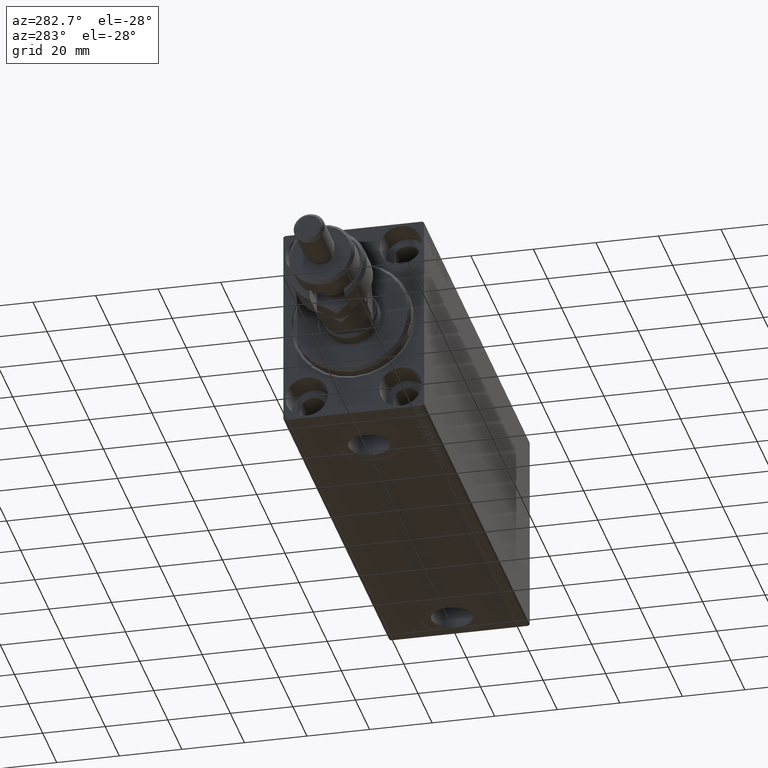
[diagram: clean part render]
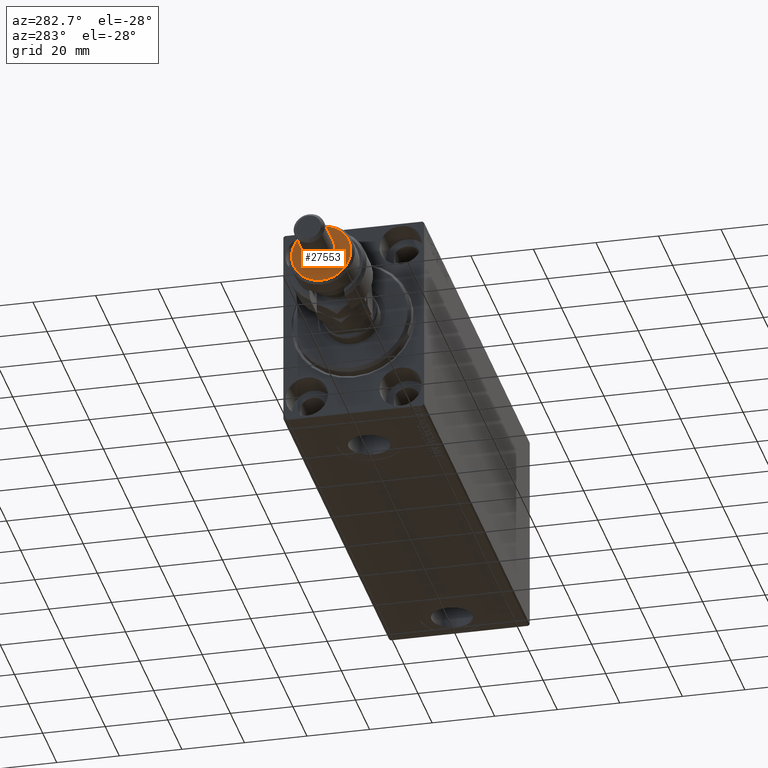
[diagram: same view with one face highlighted and labeled with its STEP entity id]
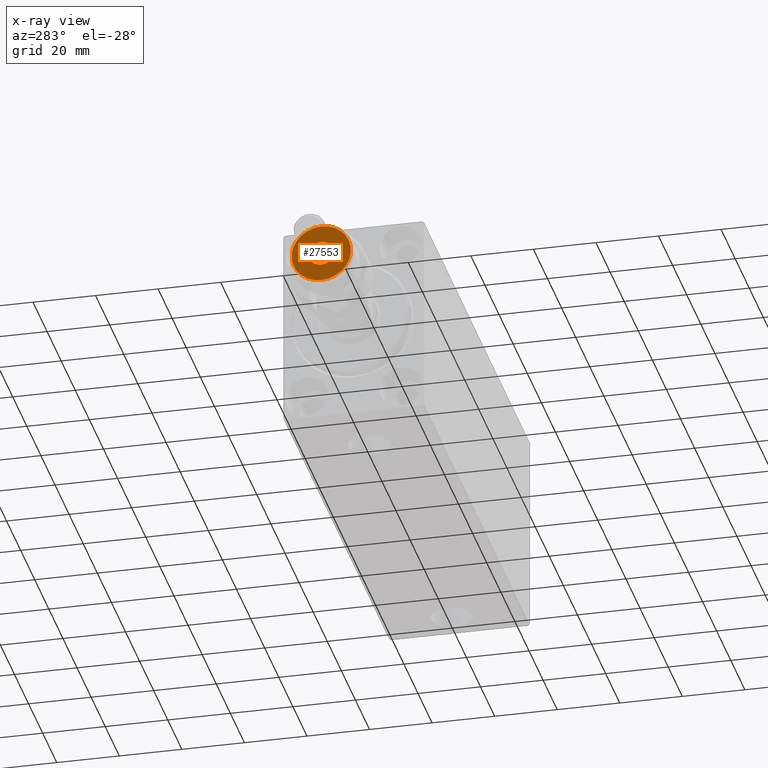
[diagram: x-ray of the same camera — body ghosted, the highlighted face saturated]
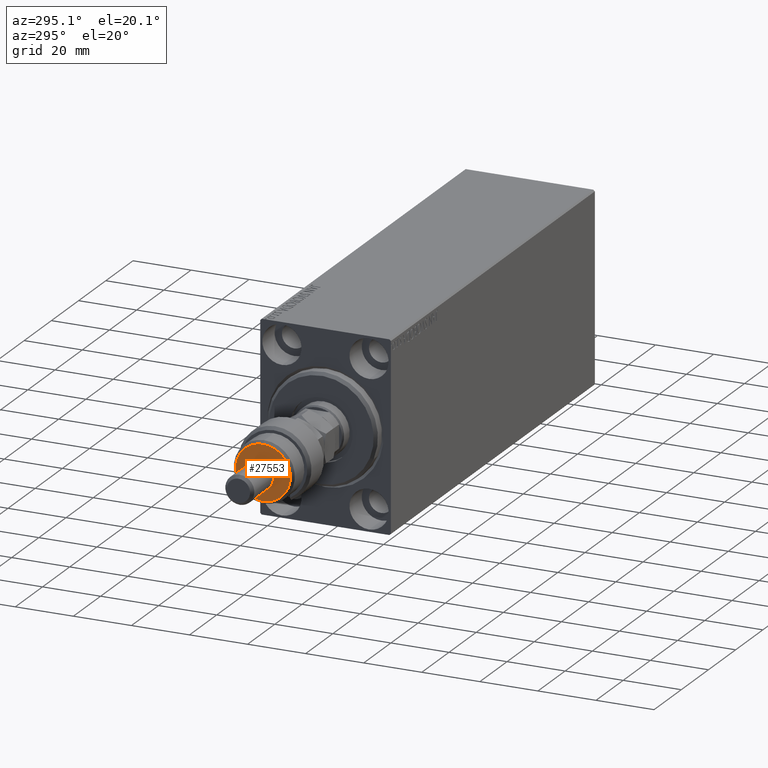
[diagram: same view with one face highlighted and labeled with its STEP entity id]
A machine part, auxiliary view. The second image highlights one B-rep face of the part: STEP entity #27553.
The next image is the same camera in x-ray: the body ghosted, the highlighted face saturated — about 0% of this face is hidden behind the body in this view.
A second angle (auxiliary view) of the same face is appended — the face is thin or edge-on in the first view.
In plain terms, the highlighted planar face has unit normal (-1, 0, 0).
Its self-contained STEP definition (entity closure, byte-faithful):
#378 = CARTESIAN_POINT ( 'NONE',  ( 9.500000000000001776, 1.224646799147353256E-15, 19.00000000000000000 ) ) ;
#760 = AXIS2_PLACEMENT_3D ( 'NONE', #16417, #45079, #9104 ) ;
#2216 = FACE_BOUND ( 'NONE', #39548, .T. ) ;
#2399 = CARTESIAN_POINT ( 'NONE',  ( -4.000000000000000000, 0.000000000000000000, 19.00000000000000000 ) ) ;
#2441 = FACE_OUTER_BOUND ( 'NONE', #26103, .T. ) ;
#3036 = CARTESIAN_POINT ( 'NONE',  ( 0.000000000000000000, 0.000000000000000000, 19.00000000000000000 ) ) ;
#8126 = DIRECTION ( 'NONE',  ( 1.000000000000000000, 0.000000000000000000, 0.000000000000000000 ) ) ;
#9104 = DIRECTION ( 'NONE',  ( 1.000000000000000000, 0.000000000000000000, -0.000000000000000000 ) ) ;
#10291 = ORIENTED_EDGE ( 'NONE', *, *, #37788, .T. ) ;
#11389 = CARTESIAN_POINT ( 'NONE',  ( 0.000000000000000000, 0.000000000000000000, 19.00000000000000000 ) ) ;
#11423 = EDGE_CURVE ( 'NONE', #27921, #22011, #42714, .T. ) ;
#13355 = AXIS2_PLACEMENT_3D ( 'NONE', #3036, #14154, #24338 ) ;
#13995 = ORIENTED_EDGE ( 'NONE', *, *, #14884, .F. ) ;
#14154 = DIRECTION ( 'NONE',  ( 0.000000000000000000, 0.000000000000000000, 1.000000000000000000 ) ) ;
#14884 = EDGE_CURVE ( 'NONE', #22011, #27921, #40570, .T. ) ;
#15178 = DIRECTION ( 'NONE',  ( 1.000000000000000000, 0.000000000000000000, 0.000000000000000000 ) ) ;
#16417 = CARTESIAN_POINT ( 'NONE',  ( 0.000000000000000000, 0.000000000000000000, 19.00000000000000000 ) ) ;
#16670 = AXIS2_PLACEMENT_3D ( 'NONE', #44564, #22066, #8126 ) ;
#17857 = EDGE_CURVE ( 'NONE', #30050, #23551, #31422, .T. ) ;
#22011 = VERTEX_POINT ( 'NONE', #2399 ) ;
#22066 = DIRECTION ( 'NONE',  ( 0.000000000000000000, 0.000000000000000000, 1.000000000000000000 ) ) ;
#22301 = AXIS2_PLACEMENT_3D ( 'NONE', #40685, #39970, #32620 ) ;
#23551 = VERTEX_POINT ( 'NONE', #378 ) ;
#24338 = DIRECTION ( 'NONE',  ( 1.000000000000000000, 0.000000000000000000, 0.000000000000000000 ) ) ;
#24620 = AXIS2_PLACEMENT_3D ( 'NONE', #11389, #33404, #15178 ) ;
#26103 = EDGE_LOOP ( 'NONE', ( #26132, #10291 ) ) ;
#26132 = ORIENTED_EDGE ( 'NONE', *, *, #17857, .T. ) ;
#26997 = CARTESIAN_POINT ( 'NONE',  ( -9.500000000000001776, 0.000000000000000000, 19.00000000000000000 ) ) ;
#27553 = ADVANCED_FACE ( 'NONE', ( #2441, #2216 ), #30629, .T. ) ;
#27921 = VERTEX_POINT ( 'NONE', #29505 ) ;
#29505 = CARTESIAN_POINT ( 'NONE',  ( 4.000000000000000000, 4.898587196589412829E-16, 19.00000000000000000 ) ) ;
#30050 = VERTEX_POINT ( 'NONE', #26997 ) ;
#30629 = PLANE ( 'NONE',  #760 ) ;
#31422 = CIRCLE ( 'NONE', #24620, 9.500000000000001776 ) ;
#32620 = DIRECTION ( 'NONE',  ( 1.000000000000000000, 0.000000000000000000, 0.000000000000000000 ) ) ;
#33404 = DIRECTION ( 'NONE',  ( 0.000000000000000000, 0.000000000000000000, 1.000000000000000000 ) ) ;
#34719 = CIRCLE ( 'NONE', #16670, 9.500000000000001776 ) ;
#36694 = ORIENTED_EDGE ( 'NONE', *, *, #11423, .F. ) ;
#37788 = EDGE_CURVE ( 'NONE', #23551, #30050, #34719, .T. ) ;
#39548 = EDGE_LOOP ( 'NONE', ( #13995, #36694 ) ) ;
#39970 = DIRECTION ( 'NONE',  ( 0.000000000000000000, 0.000000000000000000, 1.000000000000000000 ) ) ;
#40570 = CIRCLE ( 'NONE', #13355, 4.000000000000000000 ) ;
#40685 = CARTESIAN_POINT ( 'NONE',  ( 0.000000000000000000, 0.000000000000000000, 19.00000000000000000 ) ) ;
#42714 = CIRCLE ( 'NONE', #22301, 4.000000000000000000 ) ;
#44564 = CARTESIAN_POINT ( 'NONE',  ( 0.000000000000000000, 0.000000000000000000, 19.00000000000000000 ) ) ;
#45079 = DIRECTION ( 'NONE',  ( 0.000000000000000000, 0.000000000000000000, 1.000000000000000000 ) ) ;